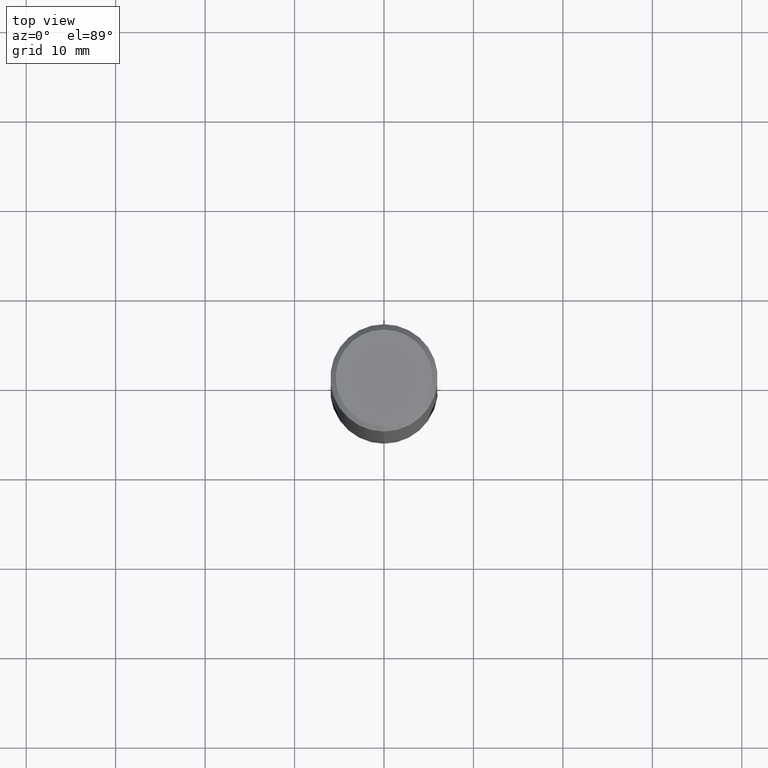
[diagram: clean part render]
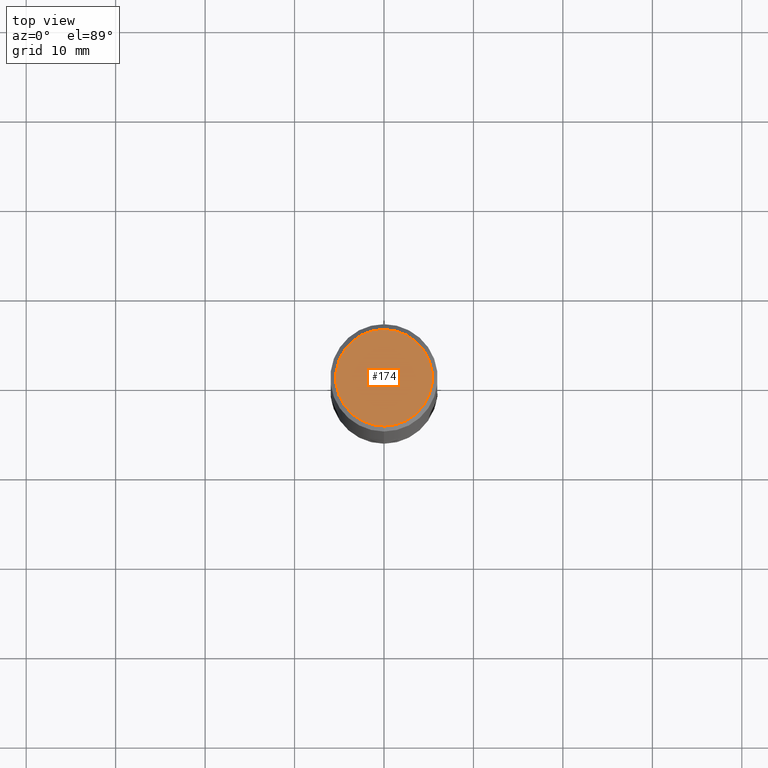
[diagram: same view with one face highlighted and labeled with its STEP entity id]
A machine part, top view. The second image highlights one B-rep face of the part: STEP entity #174.
In plain terms, the highlighted planar face has unit normal (-0, 0, 1).
Its self-contained STEP definition (entity closure, byte-faithful):
#116=VERTEX_POINT('',#281);
#138=EDGE_CURVE('',#116,#220,#304,.T.);
#174=ADVANCED_FACE('',(#344),#345,.T.);
#216=EDGE_CURVE('',#220,#116,#394,.T.);
#220=VERTEX_POINT('',#398);
#281=CARTESIAN_POINT('',(6.61287431064084E-016,-5.4,0.0));
#304=CIRCLE('',#487,5.4);
#344=FACE_OUTER_BOUND('',#536,.T.);
#345=PLANE('',#537);
#394=CIRCLE('',#601,5.4);
#398=CARTESIAN_POINT('',(0.0,5.4,0.0));
#487=AXIS2_PLACEMENT_3D('',#692,#693,#694);
#536=EDGE_LOOP('',(#748,#749));
#537=AXIS2_PLACEMENT_3D('',#750,#751,#752);
#601=AXIS2_PLACEMENT_3D('',#824,#825,#826);
#692=CARTESIAN_POINT('',(0.0,0.0,0.0));
#693=DIRECTION('',(0.0,0.0,-1.0));
#694=DIRECTION('',(0.0,1.0,0.0));
#748=ORIENTED_EDGE('',*,*,#216,.F.);
#749=ORIENTED_EDGE('',*,*,#138,.F.);
#750=CARTESIAN_POINT('',(0.0,2.7,0.0));
#751=DIRECTION('',(-0.0,0.0,1.0));
#752=DIRECTION('',(0.0,-1.0,0.0));
#824=CARTESIAN_POINT('',(0.0,0.0,0.0));
#825=DIRECTION('',(0.0,0.0,-1.0));
#826=DIRECTION('',(0.0,1.0,0.0));